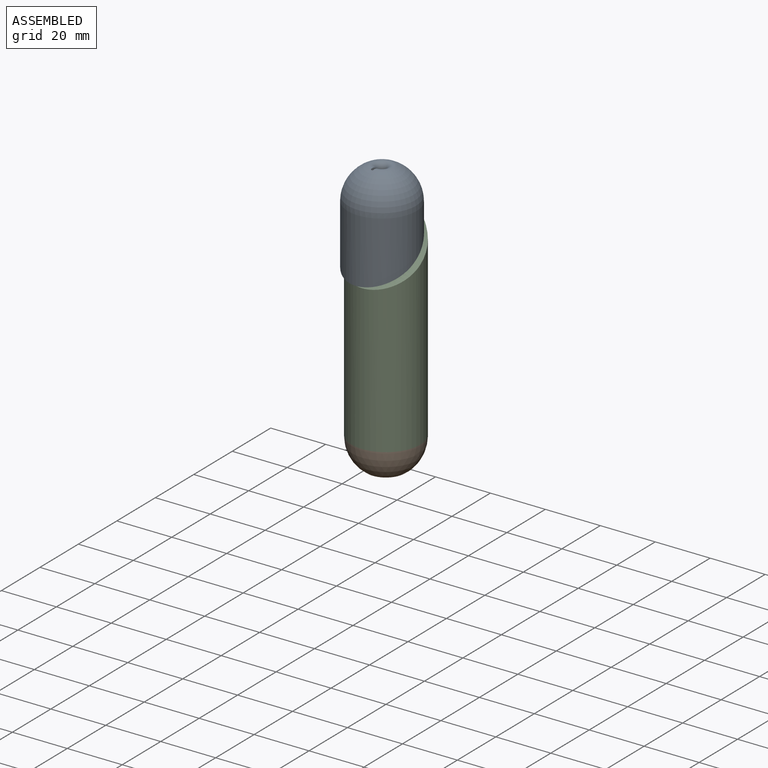
[diagram: assembled view]
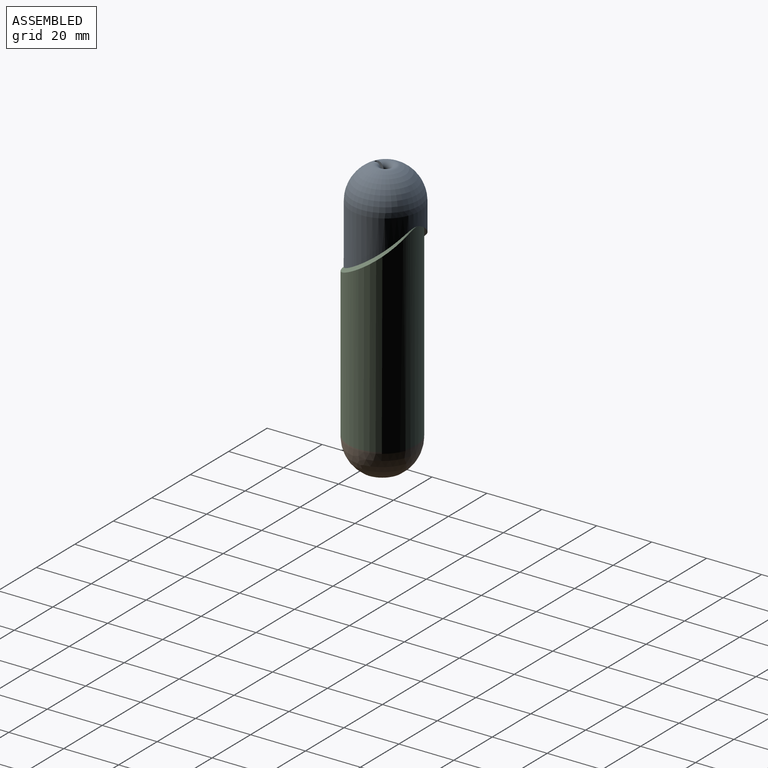
[diagram: assembled view, second angle]
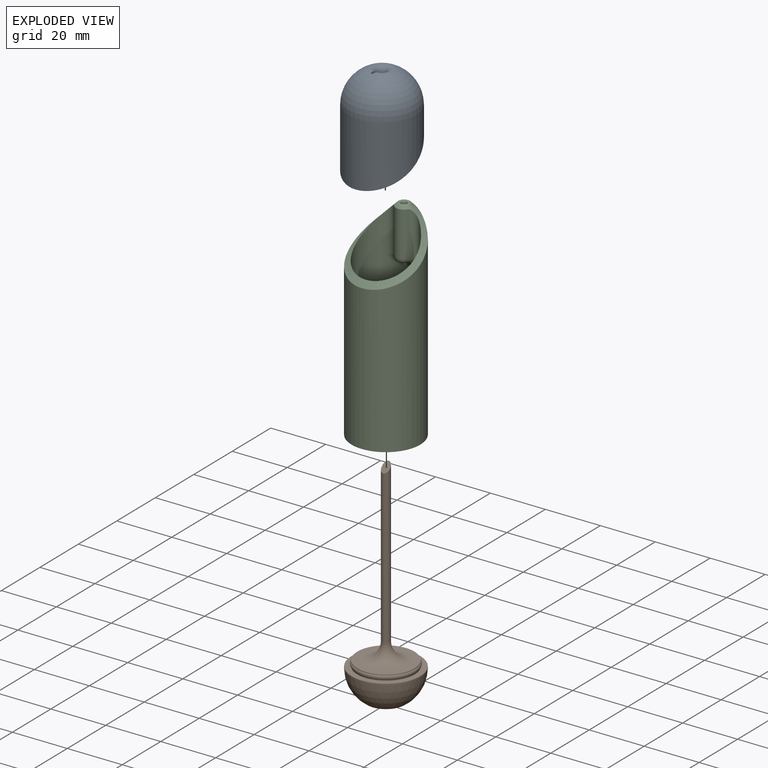
[diagram: exploded view]
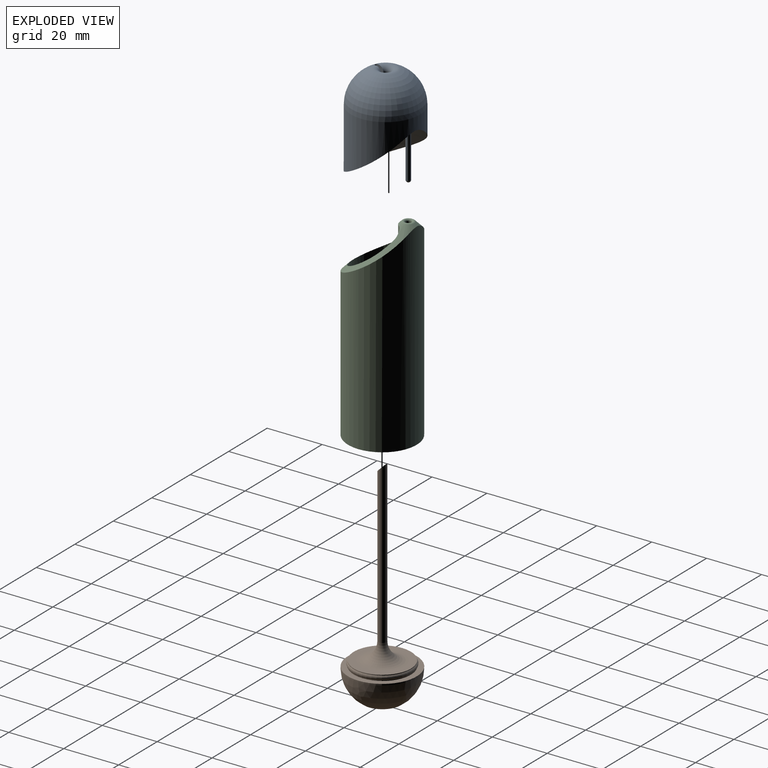
[diagram: exploded view, second angle]
ASSEMBLY  parts=3 mates=2
PART A: 14 faces, bbox 44.8x44.8x37.6 mm
  f0: cone r=21.95mm half-angle=45deg, axis (0,0,-1), area 431.8mm2, adj f3,f4,f6
  f1: cylinder r=0.85mm len=18.37mm, axis (0,0,1), area 98.1mm2, adj f2,f3
  f2: sphere r=0.85mm, area 4.5mm2, adj f1
  f3: plane 3.56x3.56mm, normal (0,0,-1), area 7.7mm2, adj f0,f1
  f4: cylinder r=12.5mm len=25mm, axis (0,0,1), area 1278.1mm2, adj f0,f5
  f5: torus R=0mm, axis (0,0,1), area 925.3mm2, adj f4,f10,f12
  f6: cylinder r=7.42mm len=18.35mm, axis (0,0,1), area 580.1mm2, adj f0,f7
  f7: torus R=0mm, axis (0,0,1), area 298.2mm2, adj f6,f8,f13
  f8: cylinder r=1.5mm len=3mm, axis (0,0,1), area 17.5mm2, adj f7,f9,f11,f12,f13
  f9: plane 4.23x3.47mm, normal (1,0,0), area 4.6mm2, adj f8,f10,f12,f13
  f10: cylinder r=0.5mm len=3.44mm, axis (0,0,1), area 3.6mm2, adj f5,f9,f11,f12,f13
  f11: plane 4.23x3.47mm, normal (-1,0,0), area 4.6mm2, adj f8,f10,f12,f13
  f12: torus R=3.5mm, axis (0,0,-1), area 56.4mm2, adj f5,f8,f9,f10,f11
  f13: bspline ~8.66x7.25mm, area 56.2mm2, adj f7,f8,f9,f10,f11
PART B: 13 faces, bbox 26.8x26.8x78 mm
  f0: cylinder r=1.5mm len=58.65mm, axis (0,0,1), area 538.1mm2, adj f4,f12
  f1: torus R=9.77mm, axis (0,0,1), area 114.2mm2, adj f2,f11
  f2: cylinder r=10.4mm len=20.8mm, axis (0,0,1), area 16.3mm2, adj f1,f3
  f3: plane 20.8x20.8mm, normal (0,0,1), area 146.2mm2, adj f2,f4
  f4: torus R=7.85mm, axis (0,0,1), area 238.6mm2, adj f0,f3
  f5: plane 5.08x5.08mm, normal (0,0,-1), area 20.3mm2, adj f6
  f6: cylinder r=2.54mm len=10.16mm, axis (0,0,1), area 162.1mm2, adj f5,f7
  f7: plane 13.56x13.56mm, normal (0,0,-1), area 124.2mm2, adj f6,f8
  f8: sphere r=12.5mm, area 824.7mm2, adj f7,f9
  f9: cylinder r=12.5mm len=25mm, axis (0,0,1), area 39.3mm2, adj f8,f10
  f10: plane 25x25mm, normal (0,0,1), area 151.1mm2, adj f9,f11
  f11: cylinder r=10.4mm len=20.8mm, axis (0,0,1), area 16.3mm2, adj f1,f10
  f12: cone r=0mm half-angle=45deg, axis (0,0,-1), area 10mm2, adj f0
PART C: 13 faces, bbox 43.9x43.9x73.8 mm
  f0: cylinder r=10.5mm len=66.93mm, axis (0,0,1), area 3727.8mm2, adj f4,f7,f10,f11,f12
  f1: cylinder r=12.5mm len=71.81mm, axis (0,0,1), area 4822.3mm2, adj f6,f7
  f2: cylinder r=3.05mm len=16.3mm, axis (0,0,1), area 99.3mm2, adj f7,f8,f10,f12
  f3: cylinder r=1.05mm len=21.29mm, axis (0,0,1), area 128.8mm2, adj f9,f11
  f4: torus R=10.1mm, axis (0,0,1), area 124.6mm2, adj f0,f5
  f5: cylinder r=10.5mm len=21mm, axis (0,0,1), area 9.9mm2, adj f4,f6
  f6: plane 25x25mm, normal (0,0,-1), area 144.5mm2, adj f1,f5
  f7: cone r=0mm half-angle=45deg, axis (0,0,-1), area 218.1mm2, adj f0,f1,f2,f9,f10,f12
  f8: torus R=1.05mm, axis (0,0,-1), area 13.4mm2, adj f2,f11
  f9: bspline ~4.27x4.27mm, area 14mm2, adj f3,f7
  f10: cylinder r=2.54mm len=16.3mm, axis (0,0,1), area 60.8mm2, adj f0,f2,f7,f11
  f11: bspline ~12.4x4.52mm, area 40.6mm2, adj f0,f3,f8,f10,f12
  f12: cylinder r=2.54mm len=16.3mm, axis (0,0,1), area 60.8mm2, adj f0,f2,f7,f11
PLACE A rot(axis=(0,0,-1),9.2deg) t=(-1.5,0.12,-0.11)mm
PLACE B at identity
PLACE C t=(0,0,-0.1)mm
MATE fastened B.f0 <-> C.f0  axis (0,0,1) through (0,0,11)mm
MATE revolute C.f7 <-> A.f0  axis (0,0,-1) through (0,9.45,83.84)mm
